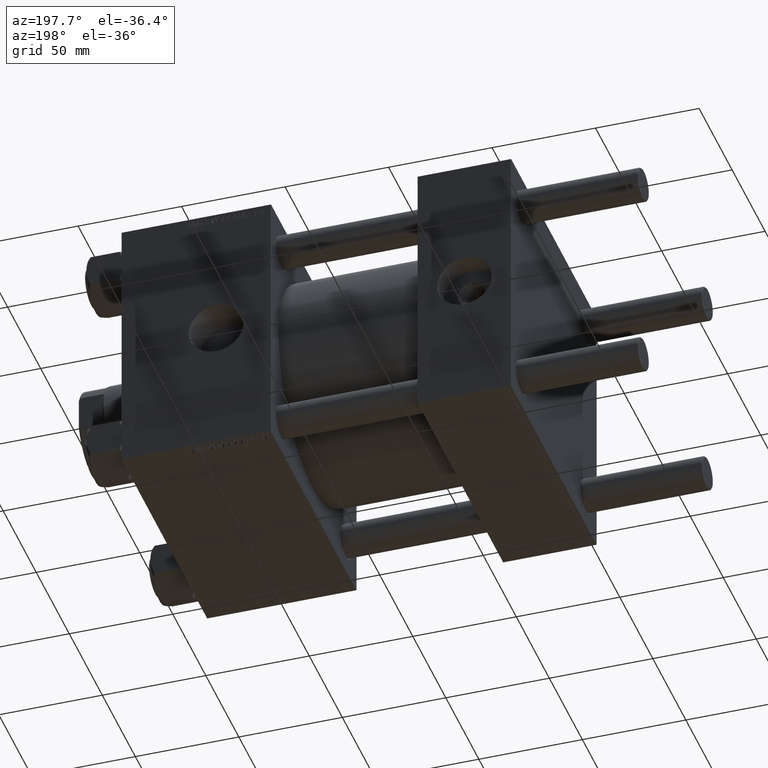
[diagram: clean part render]
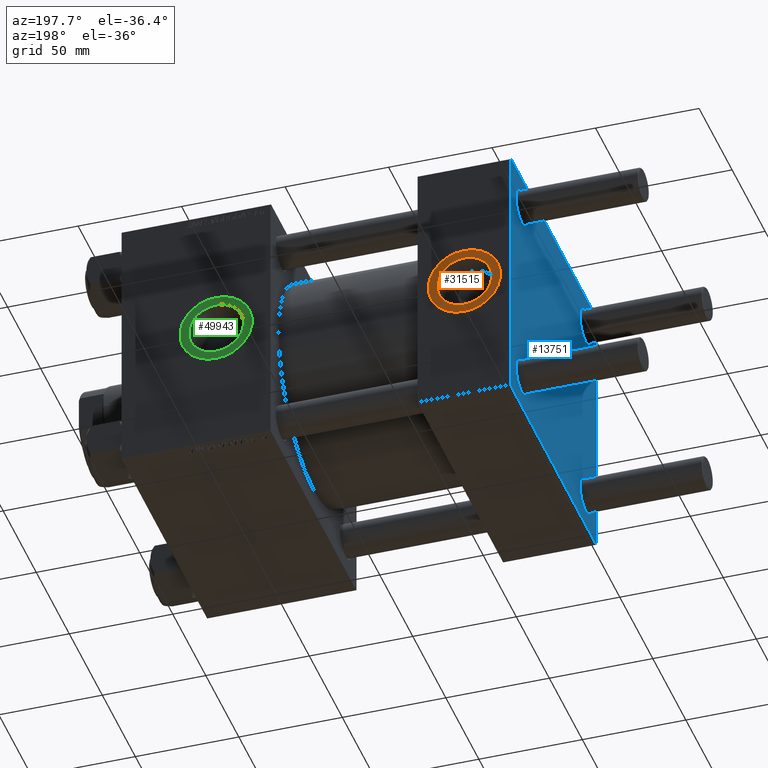
[diagram: same view with three faces highlighted in distinct colors, each labeled with its STEP entity id]
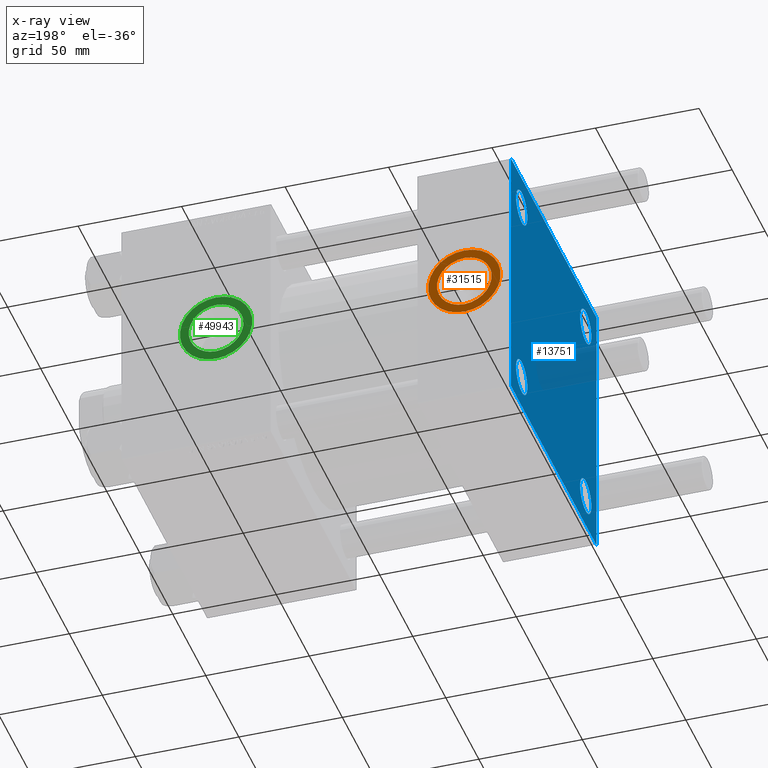
[diagram: x-ray of the same camera — body ghosted, the three highlighted faces saturated]
A machine part, auxiliary view with three faces highlighted in distinct colors.
The next image is the same camera in x-ray (body ghosted, the three faces saturated) — at least one of them is partly hidden behind the body in this view.
Their STEP definitions:

[orange] entity #31515 — the highlighted planar face has unit normal (0, 1, 0).
#2221 = ORIENTED_EDGE ( 'NONE', *, *, #27394, .T. ) ;
#4943 = EDGE_CURVE ( 'NONE', #26542, #29107, #4986, .T. ) ;
#4986 = CIRCLE ( 'NONE', #33337, 13.22000000000000419 ) ;
#5409 = CARTESIAN_POINT ( 'NONE',  ( 22.50000000000000355, 64.79999999999999716, -17.50000000000000000 ) ) ;
#6321 = CARTESIAN_POINT ( 'NONE',  ( 22.50000000000000000, 64.79999999999999716, 0.000000000000000000 ) ) ;
#6480 = ORIENTED_EDGE ( 'NONE', *, *, #4943, .F. ) ;
#7703 = DIRECTION ( 'NONE',  ( 0.000000000000000000, 0.000000000000000000, 1.000000000000000000 ) ) ;
#8135 = AXIS2_PLACEMENT_3D ( 'NONE', #33560, #25418, #34061 ) ;
#9637 = FACE_OUTER_BOUND ( 'NONE', #29452, .T. ) ;
#11887 = ORIENTED_EDGE ( 'NONE', *, *, #27591, .F. ) ;
#13345 = CIRCLE ( 'NONE', #48210, 17.50000000000000000 ) ;
#14197 = DIRECTION ( 'NONE',  ( 0.000000000000000000, 1.000000000000000000, 0.000000000000000000 ) ) ;
#16844 = CARTESIAN_POINT ( 'NONE',  ( 22.50000000000000000, 64.79999999999999716, -13.22000000000000419 ) ) ;
#17834 = CIRCLE ( 'NONE', #31642, 17.50000000000000000 ) ;
#24194 = PLANE ( 'NONE',  #27701 ) ;
#25418 = DIRECTION ( 'NONE',  ( 0.000000000000000000, 1.000000000000000000, 0.000000000000000000 ) ) ;
#25898 = EDGE_LOOP ( 'NONE', ( #6480, #11887 ) ) ;
#26542 = VERTEX_POINT ( 'NONE', #38927 ) ;
#27144 = CARTESIAN_POINT ( 'NONE',  ( 22.50000000000000000, 64.79999999999999716, 0.000000000000000000 ) ) ;
#27394 = EDGE_CURVE ( 'NONE', #50039, #44895, #17834, .T. ) ;
#27591 = EDGE_CURVE ( 'NONE', #29107, #26542, #33251, .T. ) ;
#27701 = AXIS2_PLACEMENT_3D ( 'NONE', #6321, #14197, #33252 ) ;
#28900 = ORIENTED_EDGE ( 'NONE', *, *, #43160, .T. ) ;
#29107 = VERTEX_POINT ( 'NONE', #16844 ) ;
#29452 = EDGE_LOOP ( 'NONE', ( #2221, #28900 ) ) ;
#29696 = CARTESIAN_POINT ( 'NONE',  ( 22.50000000000000000, 64.79999999999999716, 17.50000000000000000 ) ) ;
#31515 = ADVANCED_FACE ( 'NONE', ( #44433, #9637 ), #24194, .T. ) ;
#31642 = AXIS2_PLACEMENT_3D ( 'NONE', #43244, #49851, #7703 ) ;
#33251 = CIRCLE ( 'NONE', #8135, 13.22000000000000419 ) ;
#33252 = DIRECTION ( 'NONE',  ( 0.000000000000000000, -0.000000000000000000, 1.000000000000000000 ) ) ;
#33337 = AXIS2_PLACEMENT_3D ( 'NONE', #27144, #37561, #46184 ) ;
#33560 = CARTESIAN_POINT ( 'NONE',  ( 22.50000000000000000, 64.79999999999999716, 0.000000000000000000 ) ) ;
#34061 = DIRECTION ( 'NONE',  ( 0.000000000000000000, 0.000000000000000000, 1.000000000000000000 ) ) ;
#37046 = DIRECTION ( 'NONE',  ( 0.000000000000000000, 1.000000000000000000, 0.000000000000000000 ) ) ;
#37561 = DIRECTION ( 'NONE',  ( 0.000000000000000000, 1.000000000000000000, 0.000000000000000000 ) ) ;
#38927 = CARTESIAN_POINT ( 'NONE',  ( 22.50000000000000000, 64.79999999999999716, 13.22000000000000419 ) ) ;
#40361 = CARTESIAN_POINT ( 'NONE',  ( 22.50000000000000000, 64.79999999999999716, 0.000000000000000000 ) ) ;
#43160 = EDGE_CURVE ( 'NONE', #44895, #50039, #13345, .T. ) ;
#43244 = CARTESIAN_POINT ( 'NONE',  ( 22.50000000000000000, 64.79999999999999716, 0.000000000000000000 ) ) ;
#44433 = FACE_BOUND ( 'NONE', #25898, .T. ) ;
#44895 = VERTEX_POINT ( 'NONE', #5409 ) ;
#46184 = DIRECTION ( 'NONE',  ( 0.000000000000000000, 0.000000000000000000, 1.000000000000000000 ) ) ;
#47729 = DIRECTION ( 'NONE',  ( 0.000000000000000000, 0.000000000000000000, 1.000000000000000000 ) ) ;
#48210 = AXIS2_PLACEMENT_3D ( 'NONE', #40361, #37046, #47729 ) ;
#49851 = DIRECTION ( 'NONE',  ( 0.000000000000000000, 1.000000000000000000, 0.000000000000000000 ) ) ;
#50039 = VERTEX_POINT ( 'NONE', #29696 ) ;

[blue] entity #13751 — the highlighted planar face has unit normal (-1, 0, 0).
#143 = VERTEX_POINT ( 'NONE', #8181 ) ;
#915 = DIRECTION ( 'NONE',  ( 1.000000000000000000, -0.000000000000000000, 0.000000000000000000 ) ) ;
#1207 = CARTESIAN_POINT ( 'NONE',  ( 0.000000000000000000, 48.45000000000000995, -48.45000000000001705 ) ) ;
#1525 = EDGE_CURVE ( 'NONE', #46223, #16802, #6502, .T. ) ;
#1620 = CARTESIAN_POINT ( 'NONE',  ( 0.000000000000000000, -48.44999999999999574, 48.45000000000003126 ) ) ;
#2066 = VERTEX_POINT ( 'NONE', #18976 ) ;
#2484 = ORIENTED_EDGE ( 'NONE', *, *, #12549, .T. ) ;
#2807 = EDGE_LOOP ( 'NONE', ( #4001, #7571 ) ) ;
#3047 = EDGE_CURVE ( 'NONE', #18377, #43110, #9306, .T. ) ;
#3497 = DIRECTION ( 'NONE',  ( 1.000000000000000000, -0.000000000000000000, 0.000000000000000000 ) ) ;
#4001 = ORIENTED_EDGE ( 'NONE', *, *, #25244, .T. ) ;
#4140 = ORIENTED_EDGE ( 'NONE', *, *, #4471, .T. ) ;
#4471 = EDGE_CURVE ( 'NONE', #48395, #32715, #43097, .T. ) ;
#4583 = DIRECTION ( 'NONE',  ( 1.000000000000000000, -0.000000000000000000, 0.000000000000000000 ) ) ;
#5004 = VERTEX_POINT ( 'NONE', #12901 ) ;
#5190 = DIRECTION ( 'NONE',  ( 0.000000000000000000, 0.000000000000000000, 1.000000000000000000 ) ) ;
#5341 = VECTOR ( 'NONE', #14471, 1000.000000000000000 ) ;
#6059 = CIRCLE ( 'NONE', #44998, 8.500000000000007105 ) ;
#6242 = CIRCLE ( 'NONE', #19231, 8.500000000000007105 ) ;
#6502 = CIRCLE ( 'NONE', #30853, 8.500000000000007105 ) ;
#6695 = DIRECTION ( 'NONE',  ( 0.000000000000000000, 0.7071067811865474617, -0.7071067811865474617 ) ) ;
#6743 = AXIS2_PLACEMENT_3D ( 'NONE', #49752, #33521, #22578 ) ;
#6876 = VERTEX_POINT ( 'NONE', #47923 ) ;
#7260 = LINE ( 'NONE', #15133, #36189 ) ;
#7571 = ORIENTED_EDGE ( 'NONE', *, *, #17172, .T. ) ;
#8055 = VERTEX_POINT ( 'NONE', #23767 ) ;
#8181 = CARTESIAN_POINT ( 'NONE',  ( 0.000000000000000000, 64.49999999999997158, -64.99999999999998579 ) ) ;
#8455 = LINE ( 'NONE', #20637, #21436 ) ;
#8546 = CARTESIAN_POINT ( 'NONE',  ( 0.000000000000000000, -48.44999999999999574, 48.45000000000003126 ) ) ;
#9306 = LINE ( 'NONE', #9554, #49536 ) ;
#9554 = CARTESIAN_POINT ( 'NONE',  ( 0.000000000000000000, -65.00000000000000000, 65.00000000000000000 ) ) ;
#10003 = CARTESIAN_POINT ( 'NONE',  ( 0.000000000000000000, 64.74999999999998579, 64.74999999999998579 ) ) ;
#10038 = VECTOR ( 'NONE', #16488, 1000.000000000000000 ) ;
#10263 = CARTESIAN_POINT ( 'NONE',  ( 0.000000000000000000, -64.49999999999994316, -65.00000000000000000 ) ) ;
#10600 = ORIENTED_EDGE ( 'NONE', *, *, #39339, .T. ) ;
#10700 = FACE_BOUND ( 'NONE', #44947, .T. ) ;
#11012 = EDGE_CURVE ( 'NONE', #18377, #8055, #37877, .T. ) ;
#11520 = DIRECTION ( 'NONE',  ( 0.000000000000000000, 0.000000000000000000, 1.000000000000000000 ) ) ;
#12013 = ORIENTED_EDGE ( 'NONE', *, *, #39911, .F. ) ;
#12549 = EDGE_CURVE ( 'NONE', #143, #34287, #8455, .T. ) ;
#12901 = CARTESIAN_POINT ( 'NONE',  ( 0.000000000000000000, 48.45000000000000995, 56.95000000000002416 ) ) ;
#13734 = CARTESIAN_POINT ( 'NONE',  ( 0.000000000000000000, -48.44999999999999574, 56.95000000000003837 ) ) ;
#13751 = ADVANCED_FACE ( 'NONE', ( #49301, #44496, #29998, #10700, #29002 ), #21377, .T. ) ;
#14471 = DIRECTION ( 'NONE',  ( 0.000000000000000000, 0.000000000000000000, -1.000000000000000000 ) ) ;
#14793 = CARTESIAN_POINT ( 'NONE',  ( 0.000000000000000000, -48.44999999999999574, -56.95000000000003837 ) ) ;
#15133 = CARTESIAN_POINT ( 'NONE',  ( 0.000000000000000000, 64.74999999999997158, -64.74999999999997158 ) ) ;
#15229 = CARTESIAN_POINT ( 'NONE',  ( 0.000000000000000000, 65.00000000000000000, 65.00000000000001421 ) ) ;
#16197 = ORIENTED_EDGE ( 'NONE', *, *, #41808, .T. ) ;
#16415 = DIRECTION ( 'NONE',  ( 0.000000000000000000, 0.000000000000000000, 1.000000000000000000 ) ) ;
#16488 = DIRECTION ( 'NONE',  ( 0.000000000000000000, -0.7071067811865279218, 0.7071067811865671127 ) ) ;
#16802 = VERTEX_POINT ( 'NONE', #13734 ) ;
#17172 = EDGE_CURVE ( 'NONE', #24429, #48279, #6059, .T. ) ;
#17462 = CARTESIAN_POINT ( 'NONE',  ( 0.000000000000000000, 65.00000000000000000, -64.49999999999995737 ) ) ;
#17740 = CARTESIAN_POINT ( 'NONE',  ( 0.000000000000000000, -65.00000000000000000, -64.49999999999991473 ) ) ;
#18377 = VERTEX_POINT ( 'NONE', #22697 ) ;
#18555 = ORIENTED_EDGE ( 'NONE', *, *, #19856, .T. ) ;
#18822 = DIRECTION ( 'NONE',  ( -0.000000000000000000, 0.000000000000000000, 1.000000000000000000 ) ) ;
#18976 = CARTESIAN_POINT ( 'NONE',  ( 0.000000000000000000, 65.00000000000000000, 64.49999999999998579 ) ) ;
#19068 = EDGE_LOOP ( 'NONE', ( #47958, #33244 ) ) ;
#19076 = DIRECTION ( 'NONE',  ( -0.000000000000000000, 0.7071067811865672237, 0.7071067811865279218 ) ) ;
#19231 = AXIS2_PLACEMENT_3D ( 'NONE', #27322, #47119, #23753 ) ;
#19856 = EDGE_CURVE ( 'NONE', #2066, #38155, #45952, .T. ) ;
#20637 = CARTESIAN_POINT ( 'NONE',  ( 0.000000000000000000, 65.00000000000000000, -64.99999999999998579 ) ) ;
#20793 = ORIENTED_EDGE ( 'NONE', *, *, #22781, .T. ) ;
#20885 = DIRECTION ( 'NONE',  ( 0.000000000000000000, -1.000000000000000000, -1.067522139062650425E-16 ) ) ;
#21377 = PLANE ( 'NONE',  #40943 ) ;
#21418 = DIRECTION ( 'NONE',  ( 1.000000000000000000, -0.000000000000000000, 0.000000000000000000 ) ) ;
#21436 = VECTOR ( 'NONE', #20885, 1000.000000000000000 ) ;
#21740 = EDGE_LOOP ( 'NONE', ( #18555, #45796, #2484, #16197, #47035, #44725, #12013, #32971 ) ) ;
#21831 = CARTESIAN_POINT ( 'NONE',  ( 0.000000000000000000, 65.00000000000000000, 65.00000000000001421 ) ) ;
#22578 = DIRECTION ( 'NONE',  ( 0.000000000000000000, 0.000000000000000000, 1.000000000000000000 ) ) ;
#22697 = CARTESIAN_POINT ( 'NONE',  ( 0.000000000000000000, -65.00000000000000000, 64.50000000000000000 ) ) ;
#22781 = EDGE_CURVE ( 'NONE', #32772, #5004, #6242, .T. ) ;
#23045 = EDGE_CURVE ( 'NONE', #6876, #2066, #37427, .T. ) ;
#23326 = VECTOR ( 'NONE', #6695, 1000.000000000000114 ) ;
#23552 = DIRECTION ( 'NONE',  ( 0.000000000000000000, 0.000000000000000000, 1.000000000000000000 ) ) ;
#23639 = CARTESIAN_POINT ( 'NONE',  ( 0.000000000000000000, 48.45000000000000995, -56.95000000000002416 ) ) ;
#23753 = DIRECTION ( 'NONE',  ( 0.000000000000000000, 0.000000000000000000, 1.000000000000000000 ) ) ;
#23767 = CARTESIAN_POINT ( 'NONE',  ( 0.000000000000000000, -64.49999999999997158, 65.00000000000000000 ) ) ;
#24429 = VERTEX_POINT ( 'NONE', #14793 ) ;
#24668 = VECTOR ( 'NONE', #19076, 1000.000000000000000 ) ;
#24789 = DIRECTION ( 'NONE',  ( 0.000000000000000000, 0.000000000000000000, -1.000000000000000000 ) ) ;
#25173 = ORIENTED_EDGE ( 'NONE', *, *, #44043, .T. ) ;
#25223 = CARTESIAN_POINT ( 'NONE',  ( 0.000000000000000000, -48.44999999999999574, -48.45000000000003126 ) ) ;
#25244 = EDGE_CURVE ( 'NONE', #48279, #24429, #42941, .T. ) ;
#26914 = CARTESIAN_POINT ( 'NONE',  ( 0.000000000000000000, -64.75000000000176215, -64.74999999999816680 ) ) ;
#27322 = CARTESIAN_POINT ( 'NONE',  ( 0.000000000000000000, 48.45000000000000995, 48.45000000000001705 ) ) ;
#27699 = CARTESIAN_POINT ( 'NONE',  ( 0.000000000000000000, 48.45000000000000995, 39.95000000000000284 ) ) ;
#28631 = CIRCLE ( 'NONE', #6743, 8.500000000000007105 ) ;
#29002 = FACE_OUTER_BOUND ( 'NONE', #21740, .T. ) ;
#29032 = DIRECTION ( 'NONE',  ( 0.000000000000000000, 0.000000000000000000, 1.000000000000000000 ) ) ;
#29998 = FACE_BOUND ( 'NONE', #36732, .T. ) ;
#30826 = DIRECTION ( 'NONE',  ( 1.000000000000000000, -0.000000000000000000, 0.000000000000000000 ) ) ;
#30853 = AXIS2_PLACEMENT_3D ( 'NONE', #8546, #915, #16415 ) ;
#32715 = VERTEX_POINT ( 'NONE', #23639 ) ;
#32772 = VERTEX_POINT ( 'NONE', #27699 ) ;
#32971 = ORIENTED_EDGE ( 'NONE', *, *, #23045, .T. ) ;
#33103 = DIRECTION ( 'NONE',  ( 1.000000000000000000, -0.000000000000000000, 0.000000000000000000 ) ) ;
#33244 = ORIENTED_EDGE ( 'NONE', *, *, #1525, .T. ) ;
#33521 = DIRECTION ( 'NONE',  ( 1.000000000000000000, -0.000000000000000000, 0.000000000000000000 ) ) ;
#34287 = VERTEX_POINT ( 'NONE', #10263 ) ;
#34744 = CARTESIAN_POINT ( 'NONE',  ( 0.000000000000000000, -48.44999999999999574, -48.45000000000003126 ) ) ;
#34827 = AXIS2_PLACEMENT_3D ( 'NONE', #25223, #21418, #5190 ) ;
#35547 = LINE ( 'NONE', #26914, #10038 ) ;
#35571 = CARTESIAN_POINT ( 'NONE',  ( 0.000000000000000000, 48.45000000000000995, -48.45000000000001705 ) ) ;
#36189 = VECTOR ( 'NONE', #45599, 1000.000000000000114 ) ;
#36732 = EDGE_LOOP ( 'NONE', ( #4140, #25173 ) ) ;
#37322 = DIRECTION ( 'NONE',  ( 0.000000000000000000, -1.000000000000000000, -1.067522139062650425E-16 ) ) ;
#37427 = LINE ( 'NONE', #10003, #23326 ) ;
#37877 = LINE ( 'NONE', #49544, #24668 ) ;
#38155 = VERTEX_POINT ( 'NONE', #17462 ) ;
#39339 = EDGE_CURVE ( 'NONE', #5004, #32772, #28631, .T. ) ;
#39911 = EDGE_CURVE ( 'NONE', #6876, #8055, #45441, .T. ) ;
#40025 = VECTOR ( 'NONE', #37322, 1000.000000000000000 ) ;
#40554 = CARTESIAN_POINT ( 'NONE',  ( 0.000000000000000000, 48.45000000000000995, -39.95000000000000284 ) ) ;
#40943 = AXIS2_PLACEMENT_3D ( 'NONE', #42698, #49801, #18822 ) ;
#41486 = EDGE_CURVE ( 'NONE', #16802, #46223, #48961, .T. ) ;
#41808 = EDGE_CURVE ( 'NONE', #34287, #43110, #35547, .T. ) ;
#42496 = AXIS2_PLACEMENT_3D ( 'NONE', #1620, #33103, #29032 ) ;
#42698 = CARTESIAN_POINT ( 'NONE',  ( 0.000000000000000000, 0.000000000000000000, 0.000000000000000000 ) ) ;
#42941 = CIRCLE ( 'NONE', #34827, 8.500000000000007105 ) ;
#43097 = CIRCLE ( 'NONE', #46322, 8.500000000000007105 ) ;
#43110 = VERTEX_POINT ( 'NONE', #17740 ) ;
#43123 = CARTESIAN_POINT ( 'NONE',  ( 0.000000000000000000, -48.44999999999999574, -39.95000000000001705 ) ) ;
#44043 = EDGE_CURVE ( 'NONE', #32715, #48395, #47461, .T. ) ;
#44496 = FACE_BOUND ( 'NONE', #2807, .T. ) ;
#44725 = ORIENTED_EDGE ( 'NONE', *, *, #11012, .T. ) ;
#44947 = EDGE_LOOP ( 'NONE', ( #10600, #20793 ) ) ;
#44998 = AXIS2_PLACEMENT_3D ( 'NONE', #34744, #3497, #23552 ) ;
#45020 = AXIS2_PLACEMENT_3D ( 'NONE', #35571, #4583, #46754 ) ;
#45441 = LINE ( 'NONE', #21831, #40025 ) ;
#45599 = DIRECTION ( 'NONE',  ( -0.000000000000000000, -0.7071067811865474617, -0.7071067811865474617 ) ) ;
#45613 = CARTESIAN_POINT ( 'NONE',  ( 0.000000000000000000, -48.44999999999999574, 39.95000000000001705 ) ) ;
#45796 = ORIENTED_EDGE ( 'NONE', *, *, #47666, .T. ) ;
#45952 = LINE ( 'NONE', #15229, #5341 ) ;
#46223 = VERTEX_POINT ( 'NONE', #45613 ) ;
#46322 = AXIS2_PLACEMENT_3D ( 'NONE', #1207, #30826, #11520 ) ;
#46754 = DIRECTION ( 'NONE',  ( 0.000000000000000000, 0.000000000000000000, 1.000000000000000000 ) ) ;
#47035 = ORIENTED_EDGE ( 'NONE', *, *, #3047, .F. ) ;
#47119 = DIRECTION ( 'NONE',  ( 1.000000000000000000, -0.000000000000000000, 0.000000000000000000 ) ) ;
#47461 = CIRCLE ( 'NONE', #45020, 8.500000000000007105 ) ;
#47666 = EDGE_CURVE ( 'NONE', #38155, #143, #7260, .T. ) ;
#47923 = CARTESIAN_POINT ( 'NONE',  ( 0.000000000000000000, 64.49999999999997158, 65.00000000000001421 ) ) ;
#47958 = ORIENTED_EDGE ( 'NONE', *, *, #41486, .T. ) ;
#48279 = VERTEX_POINT ( 'NONE', #43123 ) ;
#48395 = VERTEX_POINT ( 'NONE', #40554 ) ;
#48961 = CIRCLE ( 'NONE', #42496, 8.500000000000007105 ) ;
#49301 = FACE_BOUND ( 'NONE', #19068, .T. ) ;
#49536 = VECTOR ( 'NONE', #24789, 1000.000000000000000 ) ;
#49544 = CARTESIAN_POINT ( 'NONE',  ( -0.000000000000000000, -64.74999999999819522, 64.75000000000179057 ) ) ;
#49752 = CARTESIAN_POINT ( 'NONE',  ( 0.000000000000000000, 48.45000000000000995, 48.45000000000001705 ) ) ;
#49801 = DIRECTION ( 'NONE',  ( -1.000000000000000000, 0.000000000000000000, -0.000000000000000000 ) ) ;

[green] entity #49943 — the highlighted planar face has unit normal (0, 1, 0).
#653 = CARTESIAN_POINT ( 'NONE',  ( 142.4399999999999693, 64.80000000000002558, 0.000000000000000000 ) ) ;
#2554 = ORIENTED_EDGE ( 'NONE', *, *, #45967, .T. ) ;
#2630 = CARTESIAN_POINT ( 'NONE',  ( 142.4399999999999693, 64.80000000000002558, 17.49999999999999289 ) ) ;
#3297 = EDGE_LOOP ( 'NONE', ( #12539, #5110 ) ) ;
#5110 = ORIENTED_EDGE ( 'NONE', *, *, #25302, .F. ) ;
#6123 = CARTESIAN_POINT ( 'NONE',  ( 142.4399999999999693, 64.80000000000002558, 0.000000000000000000 ) ) ;
#6667 = CARTESIAN_POINT ( 'NONE',  ( 142.4399999999999693, 64.80000000000002558, -17.49999999999999289 ) ) ;
#7877 = AXIS2_PLACEMENT_3D ( 'NONE', #653, #41247, #17140 ) ;
#7909 = AXIS2_PLACEMENT_3D ( 'NONE', #32523, #47999, #13955 ) ;
#8064 = AXIS2_PLACEMENT_3D ( 'NONE', #15059, #30036, #25726 ) ;
#8856 = CIRCLE ( 'NONE', #8064, 13.22000000000001307 ) ;
#9391 = AXIS2_PLACEMENT_3D ( 'NONE', #31704, #16456, #26938 ) ;
#9728 = CARTESIAN_POINT ( 'NONE',  ( 142.4399999999999693, 64.80000000000002558, -13.22000000000001307 ) ) ;
#12539 = ORIENTED_EDGE ( 'NONE', *, *, #22152, .F. ) ;
#13955 = DIRECTION ( 'NONE',  ( 0.000000000000000000, -0.000000000000000000, 1.000000000000000000 ) ) ;
#15059 = CARTESIAN_POINT ( 'NONE',  ( 142.4399999999999693, 64.80000000000002558, 0.000000000000000000 ) ) ;
#15571 = VERTEX_POINT ( 'NONE', #6667 ) ;
#16456 = DIRECTION ( 'NONE',  ( 0.000000000000000000, 1.000000000000000000, 0.000000000000000000 ) ) ;
#17140 = DIRECTION ( 'NONE',  ( 0.000000000000000000, 0.000000000000000000, 1.000000000000000000 ) ) ;
#20839 = FACE_OUTER_BOUND ( 'NONE', #38340, .T. ) ;
#20861 = AXIS2_PLACEMENT_3D ( 'NONE', #6123, #25412, #40914 ) ;
#21558 = CARTESIAN_POINT ( 'NONE',  ( 142.4399999999999693, 64.80000000000002558, 13.22000000000001307 ) ) ;
#22152 = EDGE_CURVE ( 'NONE', #27870, #40642, #24086, .T. ) ;
#23059 = VERTEX_POINT ( 'NONE', #2630 ) ;
#24086 = CIRCLE ( 'NONE', #20861, 13.22000000000001307 ) ;
#24637 = FACE_BOUND ( 'NONE', #3297, .T. ) ;
#25302 = EDGE_CURVE ( 'NONE', #40642, #27870, #8856, .T. ) ;
#25412 = DIRECTION ( 'NONE',  ( 0.000000000000000000, 1.000000000000000000, 0.000000000000000000 ) ) ;
#25726 = DIRECTION ( 'NONE',  ( 0.000000000000000000, 0.000000000000000000, 1.000000000000000000 ) ) ;
#26938 = DIRECTION ( 'NONE',  ( 0.000000000000000000, 0.000000000000000000, 1.000000000000000000 ) ) ;
#27870 = VERTEX_POINT ( 'NONE', #21558 ) ;
#30036 = DIRECTION ( 'NONE',  ( 0.000000000000000000, 1.000000000000000000, 0.000000000000000000 ) ) ;
#31704 = CARTESIAN_POINT ( 'NONE',  ( 142.4399999999999693, 64.80000000000002558, 0.000000000000000000 ) ) ;
#32523 = CARTESIAN_POINT ( 'NONE',  ( 142.4399999999999693, 64.80000000000002558, 0.000000000000000000 ) ) ;
#32987 = CIRCLE ( 'NONE', #7877, 17.49999999999999289 ) ;
#38340 = EDGE_LOOP ( 'NONE', ( #2554, #41970 ) ) ;
#39417 = CIRCLE ( 'NONE', #9391, 17.49999999999999289 ) ;
#40642 = VERTEX_POINT ( 'NONE', #9728 ) ;
#40914 = DIRECTION ( 'NONE',  ( 0.000000000000000000, 0.000000000000000000, 1.000000000000000000 ) ) ;
#41247 = DIRECTION ( 'NONE',  ( 0.000000000000000000, 1.000000000000000000, 0.000000000000000000 ) ) ;
#41970 = ORIENTED_EDGE ( 'NONE', *, *, #48606, .T. ) ;
#45967 = EDGE_CURVE ( 'NONE', #23059, #15571, #39417, .T. ) ;
#47999 = DIRECTION ( 'NONE',  ( 0.000000000000000000, 1.000000000000000000, 0.000000000000000000 ) ) ;
#48606 = EDGE_CURVE ( 'NONE', #15571, #23059, #32987, .T. ) ;
#48739 = PLANE ( 'NONE',  #7909 ) ;
#49943 = ADVANCED_FACE ( 'NONE', ( #24637, #20839 ), #48739, .T. ) ;